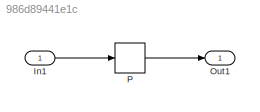
MODEL slx_986d89441e1c
KIND model
CONFIG AbsTol = auto
CONFIG EnableMultiTasking = off
CONFIG FixedStep = auto
CONFIG MaxStep = auto
CONFIG MinStep = auto
CONFIG RelTol = 1e-3
CONFIG SampleTimeConstraint = Unconstrained
CONFIG Solver = FixedStepDiscrete
CONFIG SolverName = FixedStepDiscrete
CONFIG StartTime = 0.0
CONFIG StopTime = 10.0
BLOCK [Inport] In1
  IconDisplay = Port number
  OutDataTypeStr = double
  PortDimensions = 1
BLOCK [Outport] Out1
  IconDisplay = Port number
BLOCK [PreLookup] P
  BeginIndexSearchUsingPreviousIndexResult = on
  BreakpointDataTypeStr = double
  BreakpointsData = [27.5259131366537 29.0259131366537 30.5259131366537 32.0259131366537 33.5259131366537 35.0259131366537 36.5259131366537 38.0259131366537 39.5259131366537 41.0259131366537 42.5259131366537 44.0259131366537 45.5259131366537 47.0259131366537 48.5259131366537 50.0259131366537 51.5259131366537 53.0259131366537 54.5259131366537 56.0259131366537 57.5259131366537 59.0259131366537 60.5259131366537 62.02591...<+417ch>
  FractionDataTypeStr = double
  IndexDataTypeStr = int16
  IndexSearchMethod = Linear search
  InputPortMap = u0
  OutputSelection = Index only
  Ports = [1, 1]
LINE In1:1 -> P:1
LINE P:1 -> Out1:1
